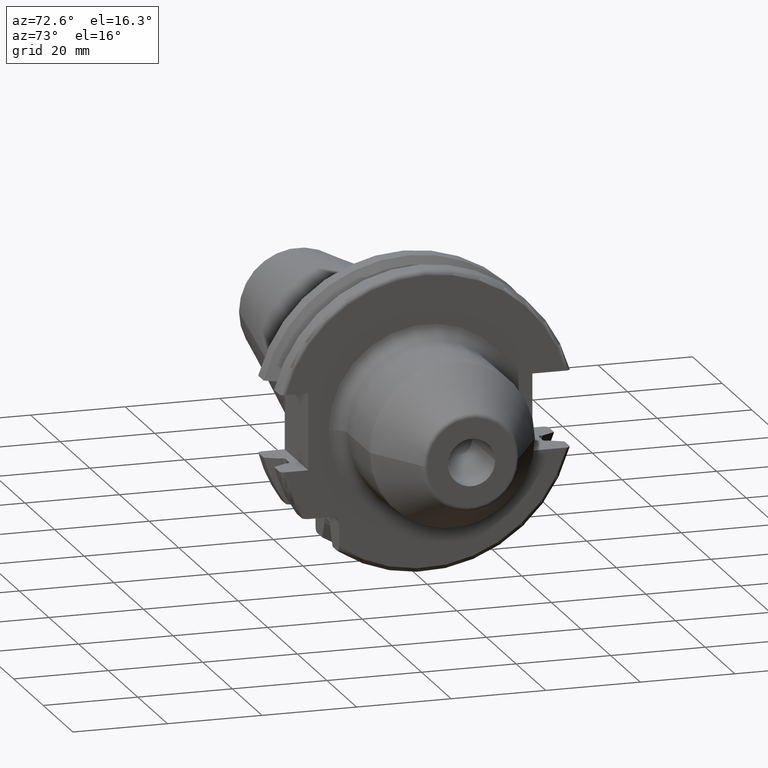
[diagram: clean part render]
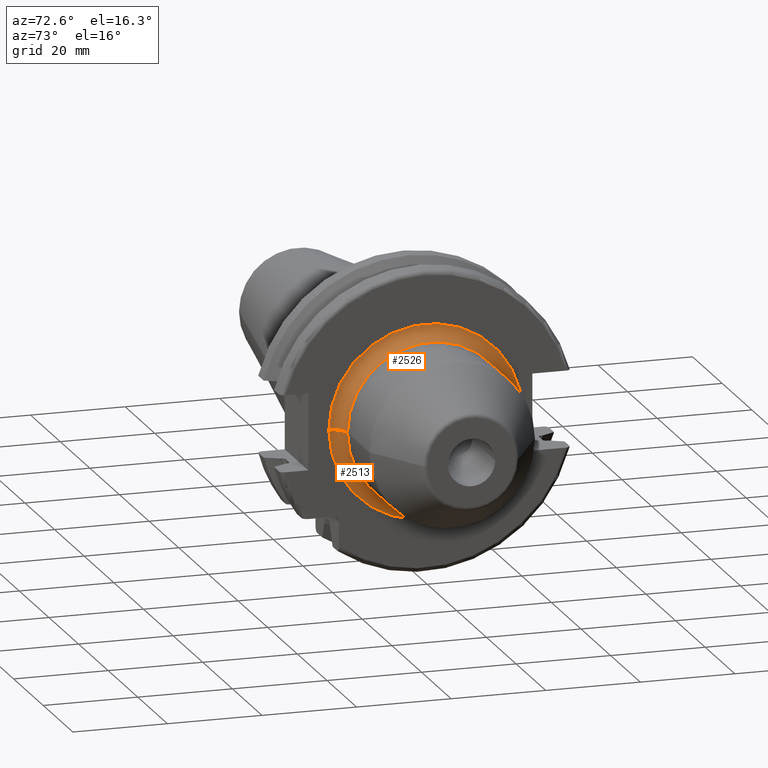
[diagram: same view with one multi-face feature highlighted, each face labeled with its STEP entity id]
A machine part, auxiliary view. The highlighted faces form ONE feature: a constant-radius fillet chain: 2 tangent blend faces with common blend radius 3 mm. The faces share edges in the B-rep.
Their STEP definitions:
[1] entity #2526 (Torus):
#163=CARTESIAN_POINT('',(1.905E1,0.E0,0.E0));
#164=DIRECTION('',(1.E0,0.E0,0.E0));
#165=DIRECTION('',(0.E0,1.E0,0.E0));
#166=AXIS2_PLACEMENT_3D('',#163,#164,#165);
#898=CARTESIAN_POINT('',(2.205E1,-2.05E1,7.421008252351E-13));
#899=DIRECTION('',(0.E0,-3.620020949668E-14,-1.E0));
#900=DIRECTION('',(-1.E0,4.736951571734E-14,0.E0));
#901=AXIS2_PLACEMENT_3D('',#898,#899,#900);
#903=CARTESIAN_POINT('',(2.205E1,2.05E1,-7.448208716454E-13));
#904=DIRECTION('',(0.E0,3.633204848086E-14,1.E0));
#905=DIRECTION('',(-1.E0,-4.618527782441E-14,0.E0));
#906=AXIS2_PLACEMENT_3D('',#903,#904,#905);
#933=CARTESIAN_POINT('',(2.205E1,0.E0,0.E0));
#934=DIRECTION('',(1.E0,0.E0,0.E0));
#935=DIRECTION('',(0.E0,1.E0,0.E0));
#936=AXIS2_PLACEMENT_3D('',#933,#934,#935);
#1557=CARTESIAN_POINT('',(1.905E1,-2.05E1,0.E0));
#1558=CARTESIAN_POINT('',(1.905E1,2.05E1,0.E0));
#1559=VERTEX_POINT('',#1557);
#1560=VERTEX_POINT('',#1558);
#1561=CARTESIAN_POINT('',(2.205E1,-1.75E1,0.E0));
#1562=CARTESIAN_POINT('',(2.205E1,1.75E1,0.E0));
#1563=VERTEX_POINT('',#1561);
#1564=VERTEX_POINT('',#1562);
#2514=CARTESIAN_POINT('',(2.205E1,0.E0,0.E0));
#2515=DIRECTION('',(1.E0,0.E0,0.E0));
#2516=DIRECTION('',(0.E0,9.999613968234E-1,-8.786629791456E-3));
#2517=AXIS2_PLACEMENT_3D('',#2514,#2515,#2516);
#2518=TOROIDAL_SURFACE('',#2517,2.05E1,3.E0);
#2519=ORIENTED_EDGE('',*,*,#1794,.F.);
#2520=ORIENTED_EDGE('',*,*,#2509,.T.);
#2522=ORIENTED_EDGE('',*,*,#2521,.T.);
#2523=ORIENTED_EDGE('',*,*,#2505,.F.);
#2524=EDGE_LOOP('',(#2519,#2520,#2522,#2523));
#2525=FACE_OUTER_BOUND('',#2524,.F.);
#2526=ADVANCED_FACE('',(#2525),#2518,.F.);
#167=CIRCLE('',#166,2.05E1);
#902=CIRCLE('',#901,3.E0);
#907=CIRCLE('',#906,3.E0);
#937=CIRCLE('',#936,1.75E1);
#1794=EDGE_CURVE('',#1560,#1559,#167,.T.);
#2505=EDGE_CURVE('',#1559,#1563,#902,.T.);
#2509=EDGE_CURVE('',#1560,#1564,#907,.T.);
#2521=EDGE_CURVE('',#1564,#1563,#937,.T.);
[2] entity #2513 (Torus):
#158=CARTESIAN_POINT('',(1.905E1,0.E0,0.E0));
#159=DIRECTION('',(1.E0,0.E0,0.E0));
#160=DIRECTION('',(0.E0,-1.E0,0.E0));
#161=AXIS2_PLACEMENT_3D('',#158,#159,#160);
#898=CARTESIAN_POINT('',(2.205E1,-2.05E1,7.421008252351E-13));
#899=DIRECTION('',(0.E0,-3.620020949668E-14,-1.E0));
#900=DIRECTION('',(-1.E0,4.736951571734E-14,0.E0));
#901=AXIS2_PLACEMENT_3D('',#898,#899,#900);
#903=CARTESIAN_POINT('',(2.205E1,2.05E1,-7.448208716454E-13));
#904=DIRECTION('',(0.E0,3.633204848086E-14,1.E0));
#905=DIRECTION('',(-1.E0,-4.618527782441E-14,0.E0));
#906=AXIS2_PLACEMENT_3D('',#903,#904,#905);
#970=CARTESIAN_POINT('',(2.205E1,0.E0,0.E0));
#971=DIRECTION('',(1.E0,0.E0,0.E0));
#972=DIRECTION('',(0.E0,-1.E0,0.E0));
#973=AXIS2_PLACEMENT_3D('',#970,#971,#972);
#1557=CARTESIAN_POINT('',(1.905E1,-2.05E1,0.E0));
#1558=CARTESIAN_POINT('',(1.905E1,2.05E1,0.E0));
#1559=VERTEX_POINT('',#1557);
#1560=VERTEX_POINT('',#1558);
#1561=CARTESIAN_POINT('',(2.205E1,-1.75E1,0.E0));
#1562=CARTESIAN_POINT('',(2.205E1,1.75E1,0.E0));
#1563=VERTEX_POINT('',#1561);
#1564=VERTEX_POINT('',#1562);
#2499=CARTESIAN_POINT('',(2.205E1,0.E0,0.E0));
#2500=DIRECTION('',(1.E0,0.E0,0.E0));
#2501=DIRECTION('',(0.E0,-9.999613968234E-1,8.786629791456E-3));
#2502=AXIS2_PLACEMENT_3D('',#2499,#2500,#2501);
#2503=TOROIDAL_SURFACE('',#2502,2.05E1,3.E0);
#2504=ORIENTED_EDGE('',*,*,#1792,.F.);
#2506=ORIENTED_EDGE('',*,*,#2505,.T.);
#2508=ORIENTED_EDGE('',*,*,#2507,.T.);
#2510=ORIENTED_EDGE('',*,*,#2509,.F.);
#2511=EDGE_LOOP('',(#2504,#2506,#2508,#2510));
#2512=FACE_OUTER_BOUND('',#2511,.F.);
#2513=ADVANCED_FACE('',(#2512),#2503,.F.);
#162=CIRCLE('',#161,2.05E1);
#902=CIRCLE('',#901,3.E0);
#907=CIRCLE('',#906,3.E0);
#974=CIRCLE('',#973,1.75E1);
#1792=EDGE_CURVE('',#1559,#1560,#162,.T.);
#2505=EDGE_CURVE('',#1559,#1563,#902,.T.);
#2507=EDGE_CURVE('',#1563,#1564,#974,.T.);
#2509=EDGE_CURVE('',#1560,#1564,#907,.T.);